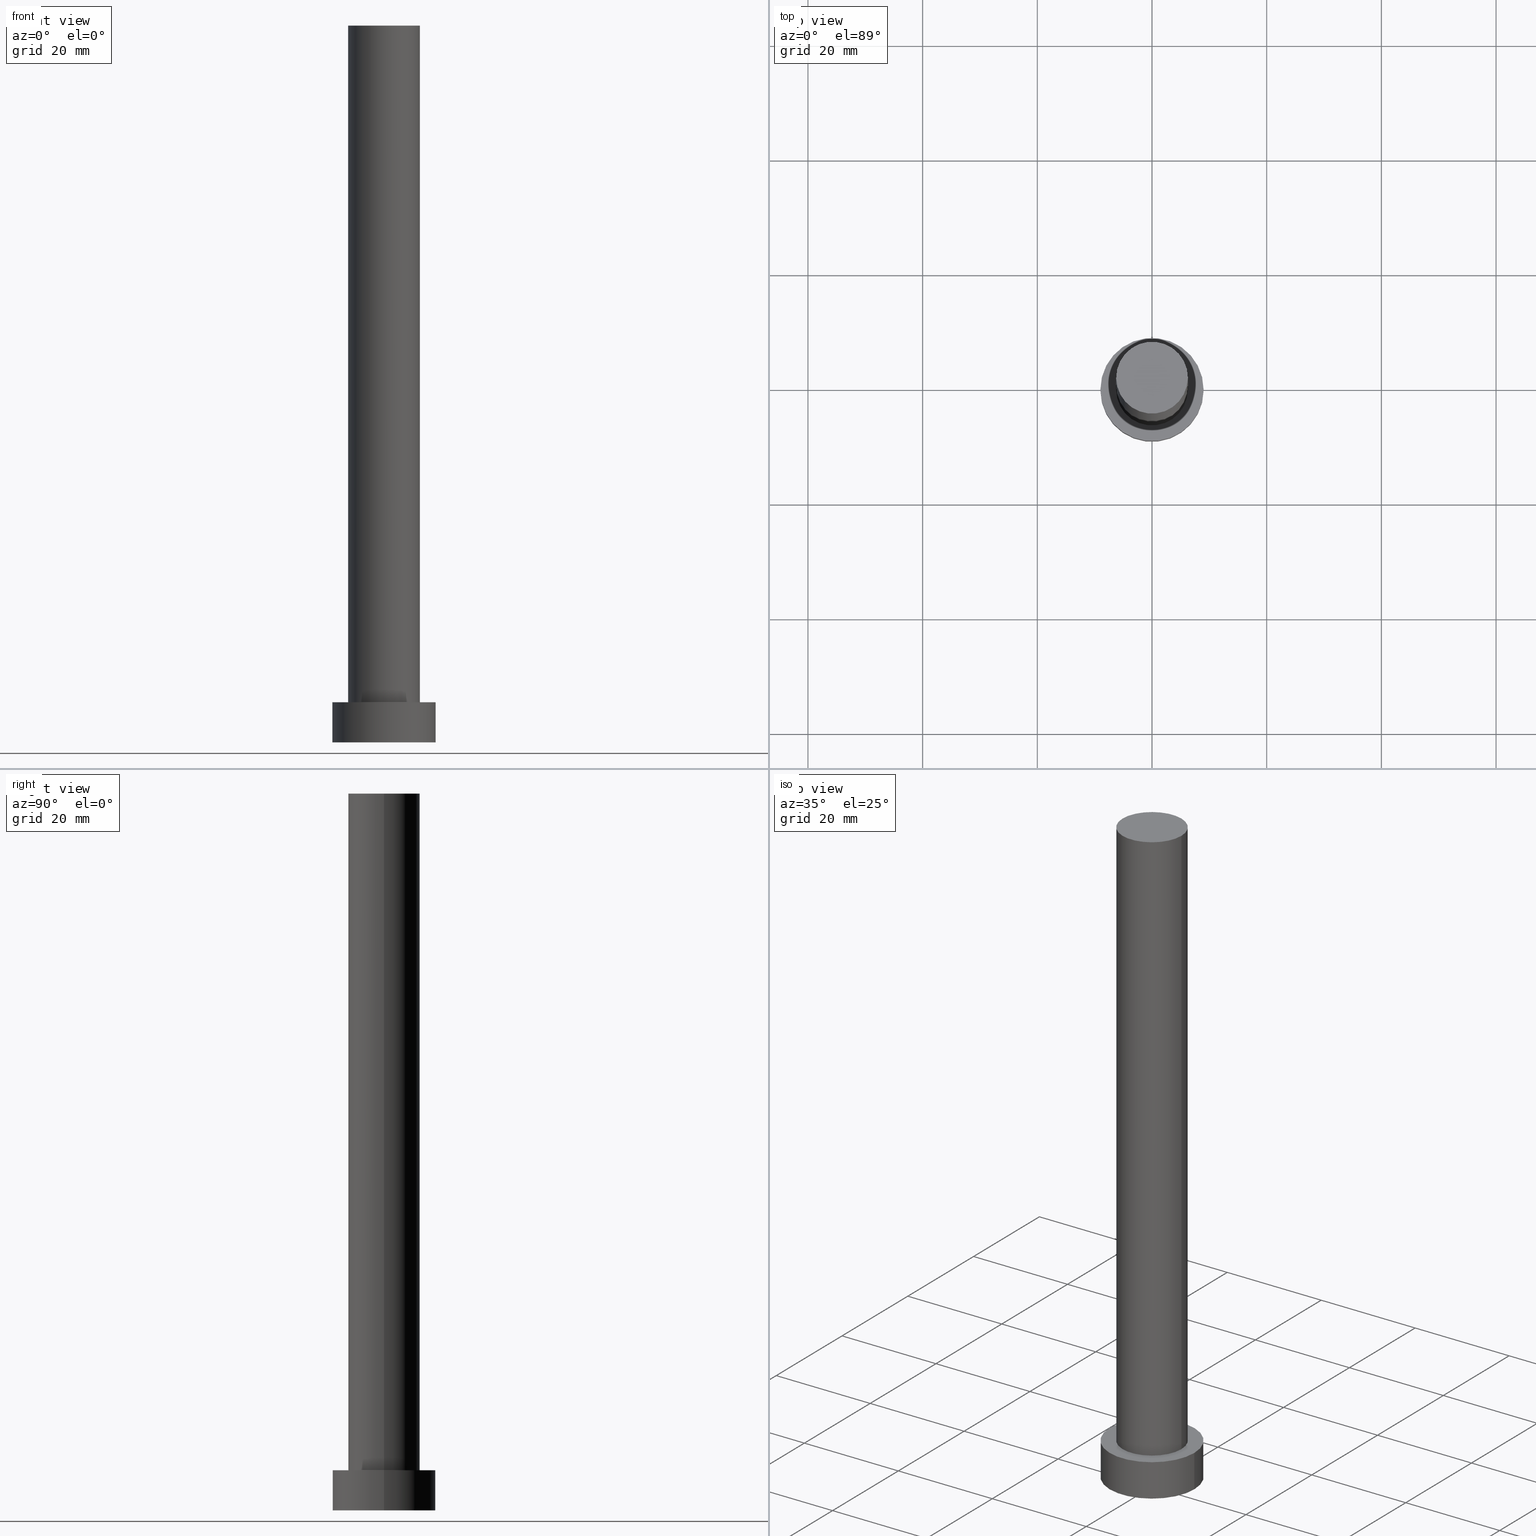
[diagram: canonical four-view strip — front | top / right | iso, engineering-drawing reading convention]
A machine part, canonical four-view strip (front | top / right | iso — engineering-drawing reading convention). The complete STEP part file that produces these views, byte-faithful:
ISO-10303-21;
HEADER;
FILE_DESCRIPTION (( 'STEP AP203' ),
    '1' );
FILE_NAME ('c93c.STEP',
    '2023-02-12T10:55:48',
    ( '' ),
    ( '' ),
    'SwSTEP 2.0',
    'SolidWorks 2019',
    '' );
FILE_SCHEMA (( 'CONFIG_CONTROL_DESIGN' ));
ENDSEC;

DATA;
#1 = DATE_AND_TIME ( #59, #10 ) ;
#2 = CARTESIAN_POINT ( 'NONE',  ( 6.250000000000000000, 7.654042494670957606E-16, 7.000000000000000000 ) ) ;
#3 = EDGE_CURVE ( 'NONE', #216, #110, #205, .T. ) ;
#4 = APPROVAL_ROLE ( '' ) ;
#5 = PLANE ( 'NONE',  #100 ) ;
#6 = CARTESIAN_POINT ( 'NONE',  ( -9.000000000000000000, 0.000000000000000000, 7.000000000000000000 ) ) ;
#7 = ORIENTED_EDGE ( 'NONE', *, *, #29, .T. ) ;
#8 = ORIENTED_EDGE ( 'NONE', *, *, #139, .F. ) ;
#9 = CIRCLE ( 'NONE', #150, 9.000000000000000000 ) ;
#10 = LOCAL_TIME ( 11, 55, 48.00000000000000000, #95 ) ;
#11 = APPROVAL_DATE_TIME ( #1, #56 ) ;
#12 = PERSON_AND_ORGANIZATION ( #255, #27 ) ;
#13 = CARTESIAN_POINT ( 'NONE',  ( 0.000000000000000000, 0.000000000000000000, 125.0000000000000000 ) ) ;
#14 = ORIENTED_EDGE ( 'NONE', *, *, #251, .T. ) ;
#15 = ORIENTED_EDGE ( 'NONE', *, *, #197, .T. ) ;
#16 = FACE_OUTER_BOUND ( 'NONE', #195, .T. ) ;
#17 = AXIS2_PLACEMENT_3D ( 'NONE', #153, #74, #98 ) ;
#18 = AXIS2_PLACEMENT_3D ( 'NONE', #206, #222, #106 ) ;
#19 = DATE_TIME_ROLE ( 'classification_date' ) ;
#20 = DIRECTION ( 'NONE',  ( -1.000000000000000000, 0.000000000000000000, 0.000000000000000000 ) ) ;
#21 = APPROVAL ( #101, 'NEUR�EN�' ) ;
#22 = LINE ( 'NONE', #244, #224 ) ;
#23 = DIRECTION ( 'NONE',  ( 0.000000000000000000, 0.000000000000000000, 1.000000000000000000 ) ) ;
#24 = DIRECTION ( 'NONE',  ( -0.000000000000000000, -0.000000000000000000, -1.000000000000000000 ) ) ;
#25 = PERSON_AND_ORGANIZATION ( #255, #27 ) ;
#26 = CIRCLE ( 'NONE', #211, 6.250000000000000000 ) ;
#27 = ORGANIZATION ( 'NEUR�EN�', 'NEUR�EN�', '' ) ;
#28 = ORIENTED_EDGE ( 'NONE', *, *, #3, .F. ) ;
#29 = EDGE_CURVE ( 'NONE', #172, #48, #218, .T. ) ;
#30 = CARTESIAN_POINT ( 'NONE',  ( 0.000000000000000000, 0.000000000000000000, 7.000000000000000000 ) ) ;
#31 = ORIENTED_EDGE ( 'NONE', *, *, #208, .T. ) ;
#32 = DIRECTION ( 'NONE',  ( 1.000000000000000000, 0.000000000000000000, 0.000000000000000000 ) ) ;
#33 = ORIENTED_EDGE ( 'NONE', *, *, #90, .F. ) ;
#34 = PRODUCT_RELATED_PRODUCT_CATEGORY ( 'detail', '', ( #126 ) ) ;
#35 = VERTEX_POINT ( 'NONE', #114 ) ;
#36 = COORDINATED_UNIVERSAL_TIME_OFFSET ( 1, 0, .AHEAD. ) ;
#37 = UNCERTAINTY_MEASURE_WITH_UNIT (LENGTH_MEASURE( 1.000000000000000082E-05 ), #248, 'distance_accuracy_value', 'NONE');
#38 = FACE_OUTER_BOUND ( 'NONE', #233, .T. ) ;
#39 = PERSON_AND_ORGANIZATION ( #255, #27 ) ;
#40 = DIRECTION ( 'NONE',  ( 0.000000000000000000, 0.000000000000000000, 1.000000000000000000 ) ) ;
#41 = PERSON_AND_ORGANIZATION_ROLE ( 'creator' ) ;
#42 = FACE_BOUND ( 'NONE', #149, .T. ) ;
#43 = APPROVAL_PERSON_ORGANIZATION ( #183, #21, #65 ) ;
#44 = DIRECTION ( 'NONE',  ( -0.000000000000000000, -0.000000000000000000, -1.000000000000000000 ) ) ;
#45 = CC_DESIGN_PERSON_AND_ORGANIZATION_ASSIGNMENT ( #12, #155, ( #52 ) ) ;
#46 = ORIENTED_EDGE ( 'NONE', *, *, #182, .F. ) ;
#47 = AXIS2_PLACEMENT_3D ( 'NONE', #226, #165, #181 ) ;
#48 = VERTEX_POINT ( 'NONE', #178 ) ;
#49 = AXIS2_PLACEMENT_3D ( 'NONE', #102, #124, #20 ) ;
#50 = EDGE_LOOP ( 'NONE', ( #7, #167 ) ) ;
#51 = LOCAL_TIME ( 11, 55, 48.00000000000000000, #91 ) ;
#52 = PRODUCT_DEFINITION ( 'NEZN�M�', '', #192, #69 ) ;
#53 = APPROVAL_STATUS ( 'not_yet_approved' ) ;
#54 = DIRECTION ( 'NONE',  ( 1.000000000000000000, 0.000000000000000000, -0.000000000000000000 ) ) ;
#55 = DIRECTION ( 'NONE',  ( 1.000000000000000000, 0.000000000000000000, 0.000000000000000000 ) ) ;
#56 = APPROVAL ( #86, 'NEUR�EN�' ) ;
#57 = AXIS2_PLACEMENT_3D ( 'NONE', #58, #240, #236 ) ;
#58 = CARTESIAN_POINT ( 'NONE',  ( 0.000000000000000000, 0.000000000000000000, 7.000000000000000000 ) ) ;
#59 = CALENDAR_DATE ( 2023, 12, 2 ) ;
#60 = FACE_OUTER_BOUND ( 'NONE', #190, .T. ) ;
#61 = APPLICATION_PROTOCOL_DEFINITION ( 'international standard', 'config_control_design', 1994, #97 ) ;
#62 = CALENDAR_DATE ( 2023, 12, 2 ) ;
#63 = AXIS2_PLACEMENT_3D ( 'NONE', #174, #254, #138 ) ;
#64 = COORDINATED_UNIVERSAL_TIME_OFFSET ( 1, 0, .AHEAD. ) ;
#65 = APPROVAL_ROLE ( '' ) ;
#66 = CIRCLE ( 'NONE', #159, 6.250000000000000000 ) ;
#67 = ORIENTED_EDGE ( 'NONE', *, *, #197, .F. ) ;
#68 = ADVANCED_FACE ( 'NONE', ( #16 ), #154, .F. ) ;
#69 = DESIGN_CONTEXT ( 'detailed design', #252, 'design' ) ;
#70 = DIRECTION ( 'NONE',  ( 0.000000000000000000, 0.000000000000000000, 1.000000000000000000 ) ) ;
#71 = DATE_TIME_ROLE ( 'creation_date' ) ;
#72 = CARTESIAN_POINT ( 'NONE',  ( 0.000000000000000000, 0.000000000000000000, 125.0000000000000000 ) ) ;
#73 = CALENDAR_DATE ( 2023, 12, 2 ) ;
#74 = DIRECTION ( 'NONE',  ( 0.000000000000000000, 0.000000000000000000, 1.000000000000000000 ) ) ;
#75 = DIRECTION ( 'NONE',  ( 0.000000000000000000, 0.000000000000000000, 1.000000000000000000 ) ) ;
#76 = FACE_OUTER_BOUND ( 'NONE', #113, .T. ) ;
#77 = CC_DESIGN_APPROVAL ( #237, ( #192 ) ) ;
#78 = PERSON_AND_ORGANIZATION ( #255, #27 ) ;
#79 = DIRECTION ( 'NONE',  ( 1.000000000000000000, 0.000000000000000000, 0.000000000000000000 ) ) ;
#80 = AXIS2_PLACEMENT_3D ( 'NONE', #203, #146, #79 ) ;
#81 = PERSON_AND_ORGANIZATION_ROLE ( 'design_supplier' ) ;
#82 = EDGE_CURVE ( 'NONE', #176, #35, #215, .T. ) ;
#83 = EDGE_LOOP ( 'NONE', ( #33, #31, #198, #130 ) ) ;
#84 = MECHANICAL_CONTEXT ( 'NONE', #97, 'mechanical' ) ;
#85 = SECURITY_CLASSIFICATION ( '', '', #243 ) ;
#86 = APPROVAL_STATUS ( 'not_yet_approved' ) ;
#87 = ORIENTED_EDGE ( 'NONE', *, *, #139, .T. ) ;
#88 = VERTEX_POINT ( 'NONE', #2 ) ;
#89 = DIRECTION ( 'NONE',  ( 0.000000000000000000, 0.000000000000000000, 1.000000000000000000 ) ) ;
#90 = EDGE_CURVE ( 'NONE', #48, #172, #9, .T. ) ;
#91 = COORDINATED_UNIVERSAL_TIME_OFFSET ( 1, 0, .AHEAD. ) ;
#92 = DATE_AND_TIME ( #73, #51 ) ;
#93 = EDGE_LOOP ( 'NONE', ( #128, #87 ) ) ;
#94 = CLOSED_SHELL ( 'NONE', ( #132, #142, #111, #214, #68, #242, #105 ) ) ;
#95 = COORDINATED_UNIVERSAL_TIME_OFFSET ( 1, 0, .AHEAD. ) ;
#96 = PLANE ( 'NONE',  #168 ) ;
#97 = APPLICATION_CONTEXT ( 'configuration controlled 3d designs of mechanical parts and assemblies' ) ;
#98 = DIRECTION ( 'NONE',  ( 1.000000000000000000, 0.000000000000000000, 0.000000000000000000 ) ) ;
#99 = CARTESIAN_POINT ( 'NONE',  ( 0.000000000000000000, 0.000000000000000000, 7.000000000000000000 ) ) ;
#100 = AXIS2_PLACEMENT_3D ( 'NONE', #225, #23, #246 ) ;
#101 = APPROVAL_STATUS ( 'not_yet_approved' ) ;
#102 = CARTESIAN_POINT ( 'NONE',  ( 0.000000000000000000, 0.000000000000000000, 125.0000000000000000 ) ) ;
#103 = DIRECTION ( 'NONE',  ( 1.000000000000000000, 0.000000000000000000, 0.000000000000000000 ) ) ;
#104 = CARTESIAN_POINT ( 'NONE',  ( -9.000000000000000000, 0.000000000000000000, 0.000000000000000000 ) ) ;
#105 = ADVANCED_FACE ( 'NONE', ( #135 ), #96, .T. ) ;
#106 = DIRECTION ( 'NONE',  ( 1.000000000000000000, 0.000000000000000000, 0.000000000000000000 ) ) ;
#107 = PERSON_AND_ORGANIZATION ( #255, #27 ) ;
#108 = VECTOR ( 'NONE', #44, 1000.000000000000000 ) ;
#109 = CC_DESIGN_PERSON_AND_ORGANIZATION_ASSIGNMENT ( #161, #245, ( #85 ) ) ;
#110 = VERTEX_POINT ( 'NONE', #156 ) ;
#111 = ADVANCED_FACE ( 'NONE', ( #76 ), #217, .T. ) ;
#112 = CARTESIAN_POINT ( 'NONE',  ( -6.250000000000000000, 0.000000000000000000, 125.0000000000000000 ) ) ;
#113 = EDGE_LOOP ( 'NONE', ( #220, #209, #14, #212 ) ) ;
#114 = CARTESIAN_POINT ( 'NONE',  ( -6.250000000000000000, 0.000000000000000000, 7.000000000000000000 ) ) ;
#115 = VERTEX_POINT ( 'NONE', #116 ) ;
#116 = CARTESIAN_POINT ( 'NONE',  ( 6.250000000000000000, 7.654042494670957606E-16, 125.0000000000000000 ) ) ;
#117 = CC_DESIGN_PERSON_AND_ORGANIZATION_ASSIGNMENT ( #39, #81, ( #192 ) ) ;
#118 = CARTESIAN_POINT ( 'NONE',  ( 0.000000000000000000, 0.000000000000000000, 0.000000000000000000 ) ) ;
#119 = LOCAL_TIME ( 11, 55, 48.00000000000000000, #64 ) ;
#120 = CARTESIAN_POINT ( 'NONE',  ( -6.250000000000000000, 0.000000000000000000, 125.0000000000000000 ) ) ;
#121 = COORDINATED_UNIVERSAL_TIME_OFFSET ( 1, 0, .AHEAD. ) ;
#122 = CC_DESIGN_PERSON_AND_ORGANIZATION_ASSIGNMENT ( #25, #232, ( #126 ) ) ;
#123 = CARTESIAN_POINT ( 'NONE',  ( 0.000000000000000000, 0.000000000000000000, 7.000000000000000000 ) ) ;
#124 = DIRECTION ( 'NONE',  ( -0.000000000000000000, -0.000000000000000000, -1.000000000000000000 ) ) ;
#125 = AXIS2_PLACEMENT_3D ( 'NONE', #238, #133, #134 ) ;
#126 = PRODUCT ( 'c93c', 'c93c', '', ( #84 ) ) ;
#127 = AXIS2_PLACEMENT_3D ( 'NONE', #118, #89, #131 ) ;
#128 = ORIENTED_EDGE ( 'NONE', *, *, #228, .T. ) ;
#129 = CIRCLE ( 'NONE', #80, 9.000000000000000000 ) ;
#130 = ORIENTED_EDGE ( 'NONE', *, *, #251, .F. ) ;
#131 = DIRECTION ( 'NONE',  ( 1.000000000000000000, 0.000000000000000000, 0.000000000000000000 ) ) ;
#132 = ADVANCED_FACE ( 'NONE', ( #60 ), #137, .T. ) ;
#133 = DIRECTION ( 'NONE',  ( 0.000000000000000000, 0.000000000000000000, 1.000000000000000000 ) ) ;
#134 = DIRECTION ( 'NONE',  ( 1.000000000000000000, 0.000000000000000000, -0.000000000000000000 ) ) ;
#135 = FACE_OUTER_BOUND ( 'NONE', #93, .T. ) ;
#136 = MANIFOLD_SOLID_BREP ( 'P�idat vysunut�m3', #94 ) ;
#137 = CYLINDRICAL_SURFACE ( 'NONE', #63, 6.250000000000000000 ) ;
#138 = DIRECTION ( 'NONE',  ( -1.000000000000000000, 0.000000000000000000, 0.000000000000000000 ) ) ;
#139 = EDGE_CURVE ( 'NONE', #115, #176, #26, .T. ) ;
#140 = LINE ( 'NONE', #184, #108 ) ;
#141 = CIRCLE ( 'NONE', #18, 6.250000000000000000 ) ;
#142 = ADVANCED_FACE ( 'NONE', ( #253 ), #234, .T. ) ;
#143 = DIRECTION ( 'NONE',  ( 0.000000000000000000, 0.000000000000000000, 1.000000000000000000 ) ) ;
#144 = APPROVAL_DATE_TIME ( #199, #237 ) ;
#145 = DIRECTION ( 'NONE',  ( 1.000000000000000000, 0.000000000000000000, 0.000000000000000000 ) ) ;
#146 = DIRECTION ( 'NONE',  ( 0.000000000000000000, 0.000000000000000000, 1.000000000000000000 ) ) ;
#147 = CC_DESIGN_DATE_AND_TIME_ASSIGNMENT ( #92, #71, ( #52 ) ) ;
#148 = EDGE_CURVE ( 'NONE', #110, #216, #129, .T. ) ;
#149 = EDGE_LOOP ( 'NONE', ( #67, #46 ) ) ;
#150 = AXIS2_PLACEMENT_3D ( 'NONE', #99, #75, #55 ) ;
#151 = CC_DESIGN_APPROVAL ( #21, ( #85 ) ) ;
#152 = PERSON_AND_ORGANIZATION ( #255, #27 ) ;
#153 = CARTESIAN_POINT ( 'NONE',  ( 0.000000000000000000, 0.000000000000000000, 0.000000000000000000 ) ) ;
#154 = PLANE ( 'NONE',  #125 ) ;
#155 = PERSON_AND_ORGANIZATION_ROLE ( 'creator' ) ;
#156 = CARTESIAN_POINT ( 'NONE',  ( 9.000000000000000000, 1.102182119232617714E-15, 0.000000000000000000 ) ) ;
#157 = CC_DESIGN_DATE_AND_TIME_ASSIGNMENT ( #201, #19, ( #85 ) ) ;
#158 = ORIENTED_EDGE ( 'NONE', *, *, #82, .F. ) ;
#159 = AXIS2_PLACEMENT_3D ( 'NONE', #164, #143, #145 ) ;
#160 = FACE_OUTER_BOUND ( 'NONE', #50, .T. ) ;
#161 = PERSON_AND_ORGANIZATION ( #255, #27 ) ;
#162 = CARTESIAN_POINT ( 'NONE',  ( -9.000000000000000000, 0.000000000000000000, 7.000000000000000000 ) ) ;
#163 = AXIS2_PLACEMENT_3D ( 'NONE', #30, #196, #32 ) ;
#164 = CARTESIAN_POINT ( 'NONE',  ( 0.000000000000000000, 0.000000000000000000, 7.000000000000000000 ) ) ;
#165 = DIRECTION ( 'NONE',  ( -0.000000000000000000, -0.000000000000000000, -1.000000000000000000 ) ) ;
#166 = DIRECTION ( 'NONE',  ( -0.000000000000000000, -0.000000000000000000, -1.000000000000000000 ) ) ;
#167 = ORIENTED_EDGE ( 'NONE', *, *, #90, .T. ) ;
#168 = AXIS2_PLACEMENT_3D ( 'NONE', #13, #70, #54 ) ;
#169 = CC_DESIGN_PERSON_AND_ORGANIZATION_ASSIGNMENT ( #78, #41, ( #192 ) ) ;
#170 = VECTOR ( 'NONE', #166, 1000.000000000000000 ) ;
#171 = ADVANCED_BREP_SHAPE_REPRESENTATION ( 'c93c', ( #136, #127 ), #173 ) ;
#172 = VERTEX_POINT ( 'NONE', #162 ) ;
#173 =( GEOMETRIC_REPRESENTATION_CONTEXT ( 3 ) GLOBAL_UNCERTAINTY_ASSIGNED_CONTEXT ( ( #37 ) ) GLOBAL_UNIT_ASSIGNED_CONTEXT ( ( #248, #204, #187 ) ) REPRESENTATION_CONTEXT ( 'NONE', 'WORKASPACE' ) );
#174 = CARTESIAN_POINT ( 'NONE',  ( 0.000000000000000000, 0.000000000000000000, 125.0000000000000000 ) ) ;
#175 = CC_DESIGN_APPROVAL ( #56, ( #52 ) ) ;
#176 = VERTEX_POINT ( 'NONE', #120 ) ;
#177 = ORIENTED_EDGE ( 'NONE', *, *, #193, .F. ) ;
#178 = CARTESIAN_POINT ( 'NONE',  ( 9.000000000000000000, 1.102182119232617714E-15, 7.000000000000000000 ) ) ;
#179 = SHAPE_DEFINITION_REPRESENTATION ( #230, #171 ) ;
#180 = CYLINDRICAL_SURFACE ( 'NONE', #49, 6.250000000000000000 ) ;
#181 = DIRECTION ( 'NONE',  ( -1.000000000000000000, 0.000000000000000000, 0.000000000000000000 ) ) ;
#182 = EDGE_CURVE ( 'NONE', #88, #35, #250, .T. ) ;
#183 = PERSON_AND_ORGANIZATION ( #255, #27 ) ;
#184 = CARTESIAN_POINT ( 'NONE',  ( 9.000000000000000000, 1.102182119232617714E-15, 7.000000000000000000 ) ) ;
#185 = LOCAL_TIME ( 11, 55, 48.00000000000000000, #121 ) ;
#186 = CALENDAR_DATE ( 2023, 12, 2 ) ;
#187 =( NAMED_UNIT ( * ) SI_UNIT ( $, .STERADIAN. ) SOLID_ANGLE_UNIT ( ) );
#188 = APPROVAL_ROLE ( '' ) ;
#189 = ORIENTED_EDGE ( 'NONE', *, *, #82, .T. ) ;
#190 = EDGE_LOOP ( 'NONE', ( #8, #210, #239, #158 ) ) ;
#191 = ORIENTED_EDGE ( 'NONE', *, *, #148, .F. ) ;
#192 = PRODUCT_DEFINITION_FORMATION_WITH_SPECIFIED_SOURCE ( 'LIBOVOLN�', '', #126, .NOT_KNOWN. ) ;
#193 = EDGE_CURVE ( 'NONE', #115, #88, #22, .T. ) ;
#194 = DIRECTION ( 'NONE',  ( -0.000000000000000000, -0.000000000000000000, -1.000000000000000000 ) ) ;
#195 = EDGE_LOOP ( 'NONE', ( #28, #191 ) ) ;
#196 = DIRECTION ( 'NONE',  ( 0.000000000000000000, 0.000000000000000000, 1.000000000000000000 ) ) ;
#197 = EDGE_CURVE ( 'NONE', #35, #88, #66, .T. ) ;
#198 = ORIENTED_EDGE ( 'NONE', *, *, #148, .T. ) ;
#199 = DATE_AND_TIME ( #223, #119 ) ;
#200 = DIRECTION ( 'NONE',  ( 1.000000000000000000, 0.000000000000000000, 0.000000000000000000 ) ) ;
#201 = DATE_AND_TIME ( #186, #207 ) ;
#202 = APPROVAL_PERSON_ORGANIZATION ( #152, #237, #4 ) ;
#203 = CARTESIAN_POINT ( 'NONE',  ( 0.000000000000000000, 0.000000000000000000, 0.000000000000000000 ) ) ;
#204 =( NAMED_UNIT ( * ) PLANE_ANGLE_UNIT ( ) SI_UNIT ( $, .RADIAN. ) );
#205 = CIRCLE ( 'NONE', #17, 9.000000000000000000 ) ;
#206 = CARTESIAN_POINT ( 'NONE',  ( 0.000000000000000000, 0.000000000000000000, 125.0000000000000000 ) ) ;
#207 = LOCAL_TIME ( 11, 55, 48.00000000000000000, #36 ) ;
#208 = EDGE_CURVE ( 'NONE', #48, #110, #140, .T. ) ;
#209 = ORIENTED_EDGE ( 'NONE', *, *, #29, .F. ) ;
#210 = ORIENTED_EDGE ( 'NONE', *, *, #193, .T. ) ;
#211 = AXIS2_PLACEMENT_3D ( 'NONE', #72, #221, #200 ) ;
#212 = ORIENTED_EDGE ( 'NONE', *, *, #3, .T. ) ;
#213 = APPLICATION_PROTOCOL_DEFINITION ( 'international standard', 'config_control_design', 1994, #252 ) ;
#214 = ADVANCED_FACE ( 'NONE', ( #42, #160 ), #5, .T. ) ;
#215 = LINE ( 'NONE', #112, #229 ) ;
#216 = VERTEX_POINT ( 'NONE', #104 ) ;
#217 = CYLINDRICAL_SURFACE ( 'NONE', #57, 9.000000000000000000 ) ;
#218 = CIRCLE ( 'NONE', #163, 9.000000000000000000 ) ;
#219 = CC_DESIGN_SECURITY_CLASSIFICATION ( #85, ( #192 ) ) ;
#220 = ORIENTED_EDGE ( 'NONE', *, *, #208, .F. ) ;
#221 = DIRECTION ( 'NONE',  ( 0.000000000000000000, 0.000000000000000000, 1.000000000000000000 ) ) ;
#222 = DIRECTION ( 'NONE',  ( 0.000000000000000000, 0.000000000000000000, 1.000000000000000000 ) ) ;
#223 = CALENDAR_DATE ( 2023, 12, 2 ) ;
#224 = VECTOR ( 'NONE', #24, 1000.000000000000000 ) ;
#225 = CARTESIAN_POINT ( 'NONE',  ( 0.000000000000000000, 0.000000000000000000, 7.000000000000000000 ) ) ;
#226 = CARTESIAN_POINT ( 'NONE',  ( 0.000000000000000000, 0.000000000000000000, 7.000000000000000000 ) ) ;
#227 = APPROVAL_DATE_TIME ( #247, #21 ) ;
#228 = EDGE_CURVE ( 'NONE', #176, #115, #141, .T. ) ;
#229 = VECTOR ( 'NONE', #194, 1000.000000000000000 ) ;
#230 = PRODUCT_DEFINITION_SHAPE ( 'NONE', 'NONE',  #52 ) ;
#231 = APPROVAL_PERSON_ORGANIZATION ( #107, #56, #188 ) ;
#232 = PERSON_AND_ORGANIZATION_ROLE ( 'design_owner' ) ;
#233 = EDGE_LOOP ( 'NONE', ( #177, #249, #189, #15 ) ) ;
#234 = CYLINDRICAL_SURFACE ( 'NONE', #47, 9.000000000000000000 ) ;
#235 = AXIS2_PLACEMENT_3D ( 'NONE', #123, #40, #103 ) ;
#236 = DIRECTION ( 'NONE',  ( -1.000000000000000000, 0.000000000000000000, 0.000000000000000000 ) ) ;
#237 = APPROVAL ( #53, 'NEUR�EN�' ) ;
#238 = CARTESIAN_POINT ( 'NONE',  ( 0.000000000000000000, 0.000000000000000000, 0.000000000000000000 ) ) ;
#239 = ORIENTED_EDGE ( 'NONE', *, *, #182, .T. ) ;
#240 = DIRECTION ( 'NONE',  ( -0.000000000000000000, -0.000000000000000000, -1.000000000000000000 ) ) ;
#241 = LINE ( 'NONE', #6, #170 ) ;
#242 = ADVANCED_FACE ( 'NONE', ( #38 ), #180, .T. ) ;
#243 = SECURITY_CLASSIFICATION_LEVEL ( 'unclassified' ) ;
#244 = CARTESIAN_POINT ( 'NONE',  ( 6.250000000000000000, 7.654042494670957606E-16, 125.0000000000000000 ) ) ;
#245 = PERSON_AND_ORGANIZATION_ROLE ( 'classification_officer' ) ;
#246 = DIRECTION ( 'NONE',  ( 1.000000000000000000, 0.000000000000000000, -0.000000000000000000 ) ) ;
#247 = DATE_AND_TIME ( #62, #185 ) ;
#248 =( LENGTH_UNIT ( ) NAMED_UNIT ( * ) SI_UNIT ( .MILLI., .METRE. ) );
#249 = ORIENTED_EDGE ( 'NONE', *, *, #228, .F. ) ;
#250 = CIRCLE ( 'NONE', #235, 6.250000000000000000 ) ;
#251 = EDGE_CURVE ( 'NONE', #172, #216, #241, .T. ) ;
#252 = APPLICATION_CONTEXT ( 'configuration controlled 3d designs of mechanical parts and assemblies' ) ;
#253 = FACE_OUTER_BOUND ( 'NONE', #83, .T. ) ;
#254 = DIRECTION ( 'NONE',  ( -0.000000000000000000, -0.000000000000000000, -1.000000000000000000 ) ) ;
#255 = PERSON ( 'NEUR�EN�', 'NEUR�EN�', 'NEUR�EN�', ('NEUR�EN�'), ('NEUR�EN�'), ('NEUR�EN�') ) ;
ENDSEC;
END-ISO-10303-21;
